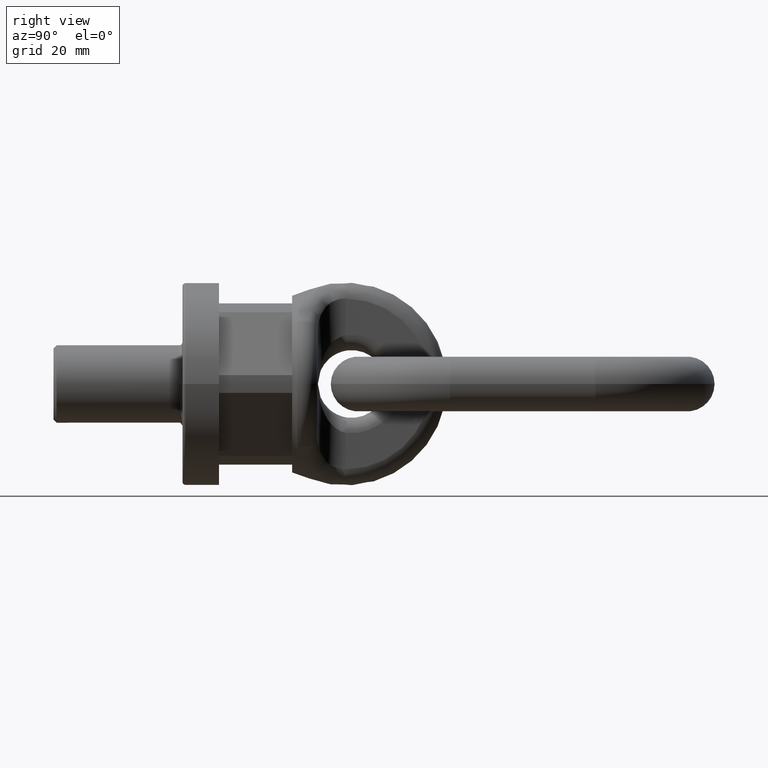
[diagram: clean part render]
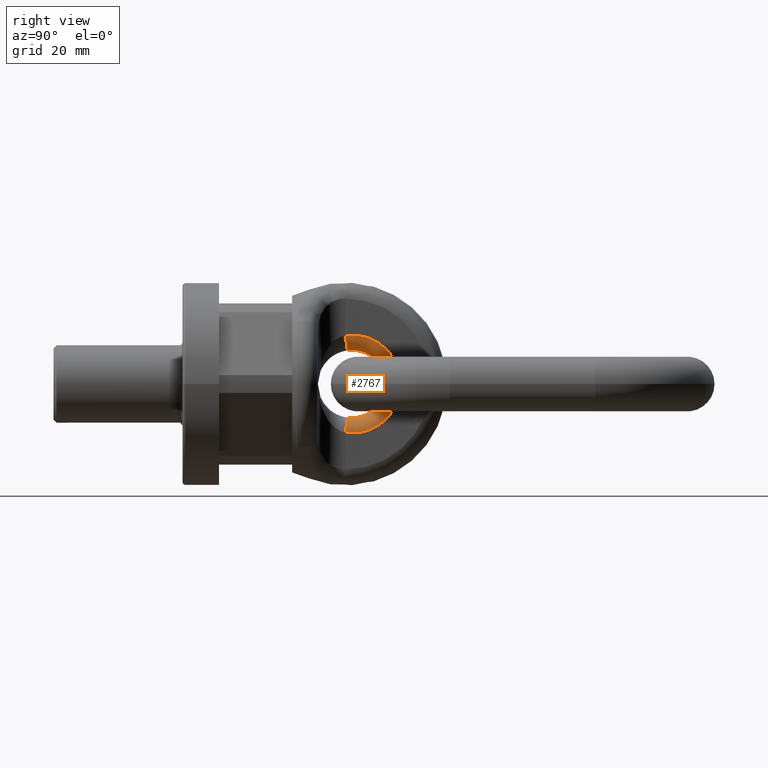
[diagram: same view with one face highlighted and labeled with its STEP entity id]
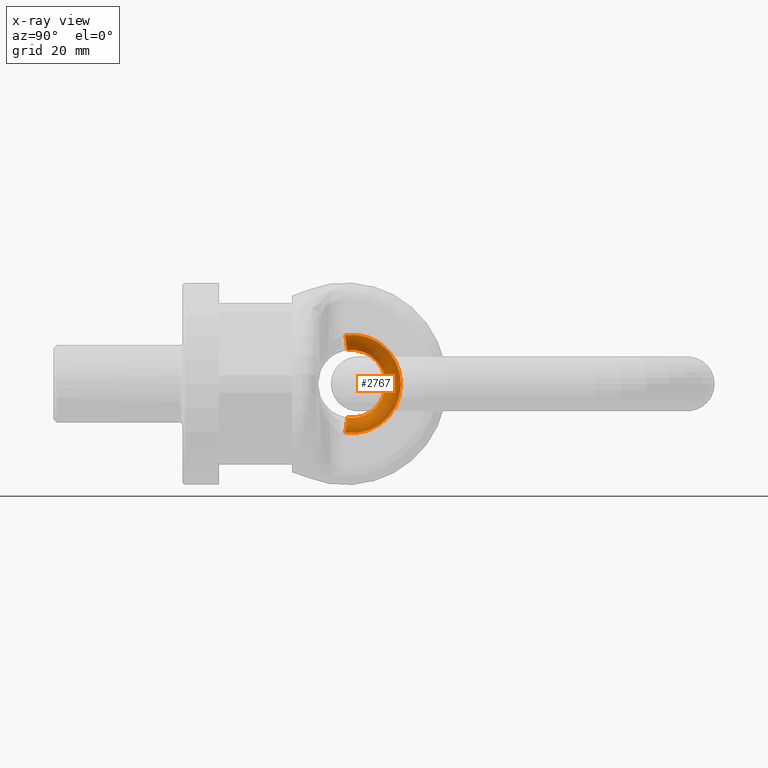
[diagram: x-ray of the same camera — body ghosted, the highlighted face saturated]
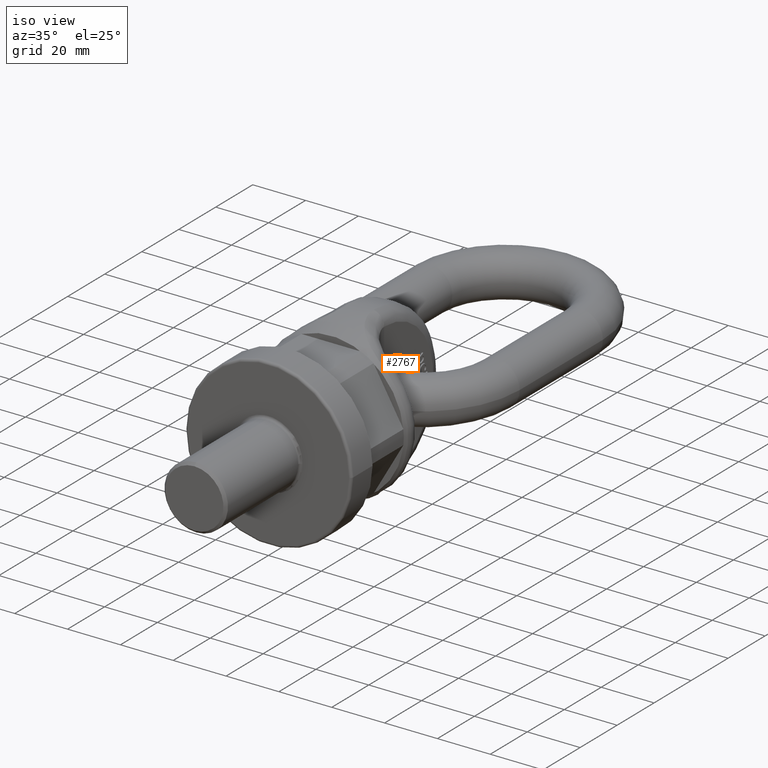
[diagram: same view with one face highlighted and labeled with its STEP entity id]
A machine part, right view. The second image highlights one B-rep face of the part: STEP entity #2767.
The next image is the same camera in x-ray: the body ghosted, the highlighted face saturated — about 4% of this face is hidden behind the body in this view.
A second angle (iso view) of the same face is appended — the face is thin or edge-on in the first view.
In plain terms, the highlighted toroidal blend (fillet) surface has major radius 15.25 mm and minor (blend) radius 4.75 mm.
Its self-contained STEP definition (entity closure, byte-faithful):
#1792=TOROIDAL_SURFACE('',#5720,15.25,4.75);
#1911=FACE_OUTER_BOUND('',#3211,.T.);
#2767=ADVANCED_FACE('',(#1911),#1792,.T.);
#3211=EDGE_LOOP('',(#3983,#3984,#3985,#3986));
#3983=ORIENTED_EDGE('',*,*,#5259,.T.);
#3984=ORIENTED_EDGE('',*,*,#5001,.F.);
#3985=ORIENTED_EDGE('',*,*,#5260,.F.);
#3986=ORIENTED_EDGE('',*,*,#5074,.F.);
#4591=VERTEX_POINT('',#6782);
#4592=VERTEX_POINT('',#6784);
#4658=VERTEX_POINT('',#7084);
#4659=VERTEX_POINT('',#7085);
#5001=EDGE_CURVE('',#4591,#4592,#5551,.T.);
#5074=EDGE_CURVE('',#4658,#4659,#5561,.T.);
#5259=EDGE_CURVE('',#4658,#4592,#5572,.T.);
#5260=EDGE_CURVE('',#4659,#4591,#5573,.T.);
#5551=CIRCLE('',#5639,15.25);
#5561=CIRCLE('',#5656,10.5);
#5572=CIRCLE('',#5718,4.75);
#5573=CIRCLE('',#5719,4.75);
#5639=AXIS2_PLACEMENT_3D('',#6783,#5920,#5921);
#5656=AXIS2_PLACEMENT_3D('',#7083,#5983,#5984);
#5718=AXIS2_PLACEMENT_3D('',#8168,#6233,#6234);
#5719=AXIS2_PLACEMENT_3D('',#8205,#6235,#6236);
#5720=AXIS2_PLACEMENT_3D('',#8206,#6237,#6238);
#5920=DIRECTION('',(-1.,3.03576608295941E-16,0.));
#5921=DIRECTION('',(3.41257077241339E-16,1.,0.));
#5983=DIRECTION('',(1.,-3.03576608295941E-16,0.));
#5984=DIRECTION('',(2.89120579329468E-16,1.,0.));
#6233=DIRECTION('',(1.44820246608132E-15,0.991362861163335,-0.131147540983605));
#6234=DIRECTION('',(0.,0.131147540983605,0.991362861163335));
#6235=DIRECTION('',(1.44820246608132E-15,-0.991362861163335,-0.131147540983607));
#6236=DIRECTION('',(0.,0.131147540983607,-0.991362861163335));
#6237=DIRECTION('',(1.,-3.03576608295941E-16,0.));
#6238=DIRECTION('',(3.03576608295941E-16,1.,0.));
#6782=CARTESIAN_POINT('',(8.49999999999999,50.5,15.1182836327409));
#6783=CARTESIAN_POINT('',(8.5,52.5,0.));
#6784=CARTESIAN_POINT('',(8.49999999999999,50.5,-15.1182836327409));
#7083=CARTESIAN_POINT('',(3.75,52.5,0.));
#7084=CARTESIAN_POINT('',(3.75,51.1229508196721,-10.409310042215));
#7085=CARTESIAN_POINT('',(3.75,51.1229508196721,10.409310042215));
#8168=CARTESIAN_POINT('',(3.75,50.5,-15.1182836327409));
#8205=CARTESIAN_POINT('',(3.75,50.5,15.1182836327409));
#8206=CARTESIAN_POINT('',(3.75,52.5,0.));